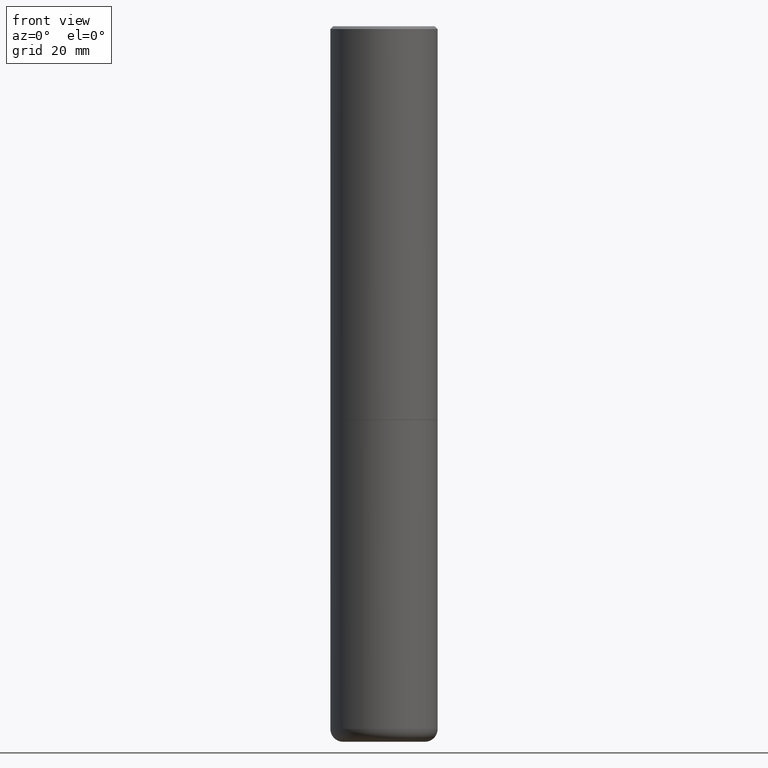
[diagram: clean part render]
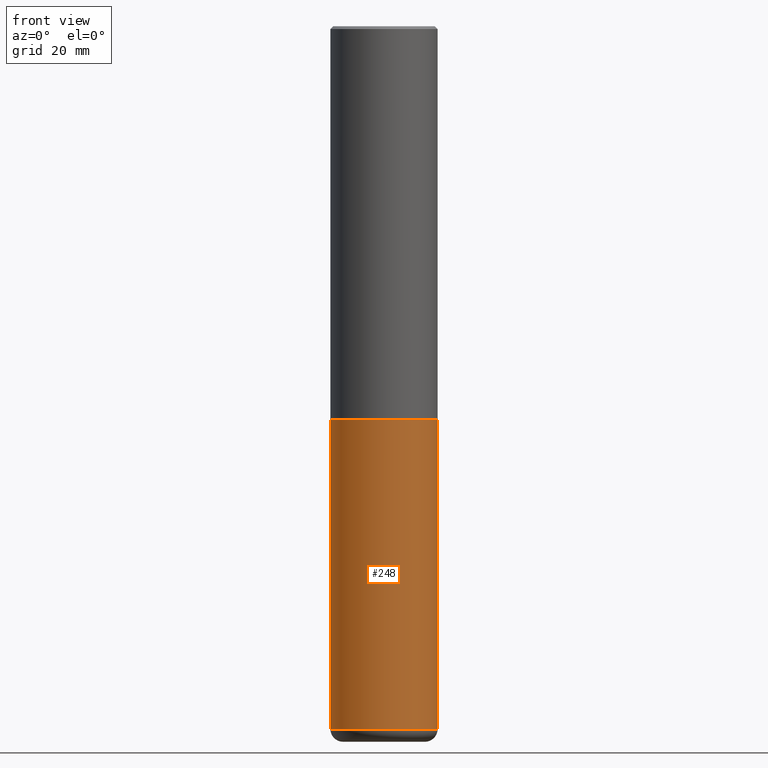
[diagram: same view with one face highlighted and labeled with its STEP entity id]
A machine part, front view. The second image highlights one B-rep face of the part: STEP entity #248.
In plain terms, the highlighted cylindrical surface (partial cylindrical patch) has radius 9.525 mm, axis along (-0, 0, 1).
Its self-contained STEP definition (entity closure, byte-faithful):
#5 = CARTESIAN_POINT ( 'NONE',  ( -0.3750000000000000555, -1.070784425118986345E-14, -2.750000000000000000 ) ) ;
#42 = ORIENTED_EDGE ( 'NONE', *, *, #126, .T. ) ;
#53 = DIRECTION ( 'NONE',  ( -2.445468806185136877E-29, 3.491481338843145188E-15, 1.000000000000000000 ) ) ;
#72 = VERTEX_POINT ( 'NONE', #5 ) ;
#83 = EDGE_CURVE ( 'NONE', #256, #439, #318, .T. ) ;
#92 = CARTESIAN_POINT ( 'NONE',  ( -0.3750000000000000555, -1.070784425118986345E-14, -4.910003426924224534 ) ) ;
#94 = ORIENTED_EDGE ( 'NONE', *, *, #83, .T. ) ;
#96 = AXIS2_PLACEMENT_3D ( 'NONE', #469, #163, #244 ) ;
#99 = CARTESIAN_POINT ( 'NONE',  ( 0.3750000000000000555, -1.222018468595100145E-14, -2.750000000000000000 ) ) ;
#123 = EDGE_CURVE ( 'NONE', #171, #72, #354, .T. ) ;
#126 = EDGE_CURVE ( 'NONE', #171, #256, #356, .T. ) ;
#163 = DIRECTION ( 'NONE',  ( -2.445468806185136597E-29, 3.491481338843145583E-15, 1.000000000000000000 ) ) ;
#166 = DIRECTION ( 'NONE',  ( -2.445468806185136597E-29, 3.491481338843145583E-15, 1.000000000000000000 ) ) ;
#171 = VERTEX_POINT ( 'NONE', #92 ) ;
#191 = CARTESIAN_POINT ( 'NONE',  ( 0.3750000000000000555, -1.976179634289417687E-14, -4.910003426924224534 ) ) ;
#196 = CARTESIAN_POINT ( 'NONE',  ( 0.000000000000000000, 0.000000000000000000, 0.000000000000000000 ) ) ;
#205 = AXIS2_PLACEMENT_3D ( 'NONE', #196, #388, #227 ) ;
#208 = CARTESIAN_POINT ( 'NONE',  ( 0.3750000000000000555, -2.618611004132350016E-15, 1.828566290923476203E-29 ) ) ;
#225 = ORIENTED_EDGE ( 'NONE', *, *, #123, .F. ) ;
#227 = DIRECTION ( 'NONE',  ( 1.000000000000000000, -6.982962677686265922E-15, 4.876176775795935793E-29 ) ) ;
#244 = DIRECTION ( 'NONE',  ( 1.000000000000000000, -6.982962677686266711E-15, 0.000000000000000000 ) ) ;
#248 = ADVANCED_FACE ( 'NONE', ( #489 ), #350, .T. ) ;
#256 = VERTEX_POINT ( 'NONE', #191 ) ;
#295 = VECTOR ( 'NONE', #322, 39.37007874015748143 ) ;
#307 = EDGE_CURVE ( 'NONE', #72, #439, #323, .T. ) ;
#315 = VECTOR ( 'NONE', #53, 39.37007874015748143 ) ;
#318 = LINE ( 'NONE', #208, #315 ) ;
#320 = CARTESIAN_POINT ( 'NONE',  ( 1.200726021880531330E-28, -1.714318533876182370E-14, -4.910003426924224534 ) ) ;
#322 = DIRECTION ( 'NONE',  ( -2.445468806185136877E-29, 3.491481338843145188E-15, 1.000000000000000000 ) ) ;
#323 = CIRCLE ( 'NONE', #96, 0.3750000000000000555 ) ;
#350 = CYLINDRICAL_SURFACE ( 'NONE', #205, 0.3750000000000000555 ) ;
#354 = LINE ( 'NONE', #394, #295 ) ;
#356 = CIRCLE ( 'NONE', #474, 0.3750000000000000555 ) ;
#388 = DIRECTION ( 'NONE',  ( -2.445468806185136597E-29, 3.491481338843145583E-15, 1.000000000000000000 ) ) ;
#390 = EDGE_LOOP ( 'NONE', ( #225, #42, #94, #451 ) ) ;
#394 = CARTESIAN_POINT ( 'NONE',  ( -0.3750000000000000555, 2.664535259100376091E-15, -1.844600658845589598E-29 ) ) ;
#439 = VERTEX_POINT ( 'NONE', #99 ) ;
#451 = ORIENTED_EDGE ( 'NONE', *, *, #307, .F. ) ;
#468 = DIRECTION ( 'NONE',  ( 1.000000000000000000, -6.982962677686266711E-15, 0.000000000000000000 ) ) ;
#469 = CARTESIAN_POINT ( 'NONE',  ( 6.725039217009124520E-29, -9.601573681818649859E-15, -2.750000000000000000 ) ) ;
#474 = AXIS2_PLACEMENT_3D ( 'NONE', #320, #166, #468 ) ;
#489 = FACE_OUTER_BOUND ( 'NONE', #390, .T. ) ;